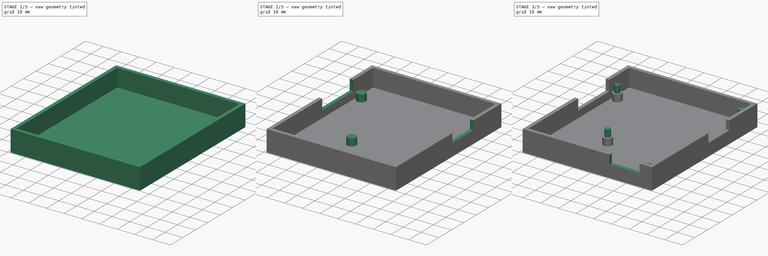
[diagram: build sequence overview — one tinted view per stage of 3, left to right]
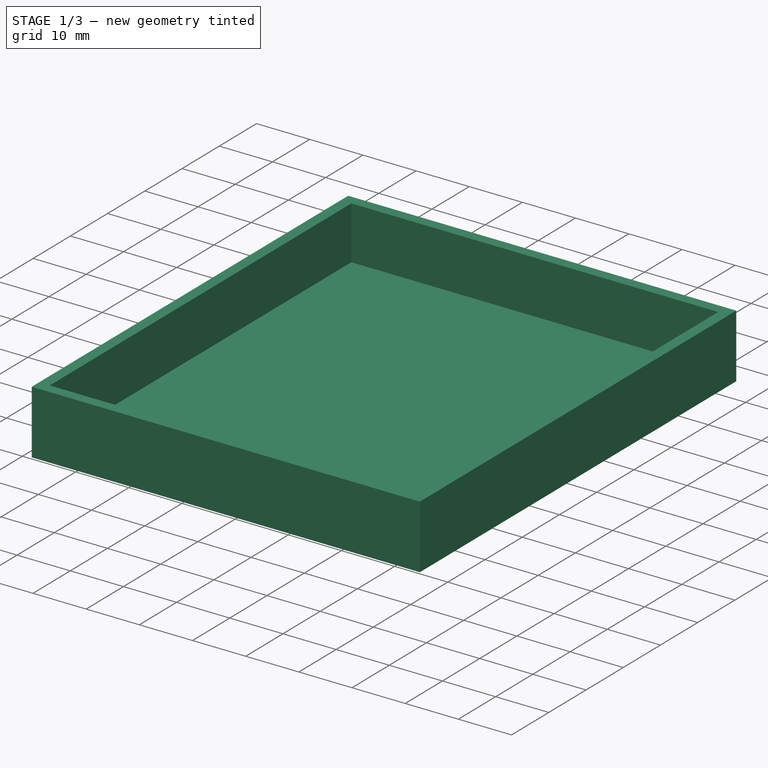
[diagram: stage 1 of 3 — iso view after this stage's code; geometry added in this stage tinted green]
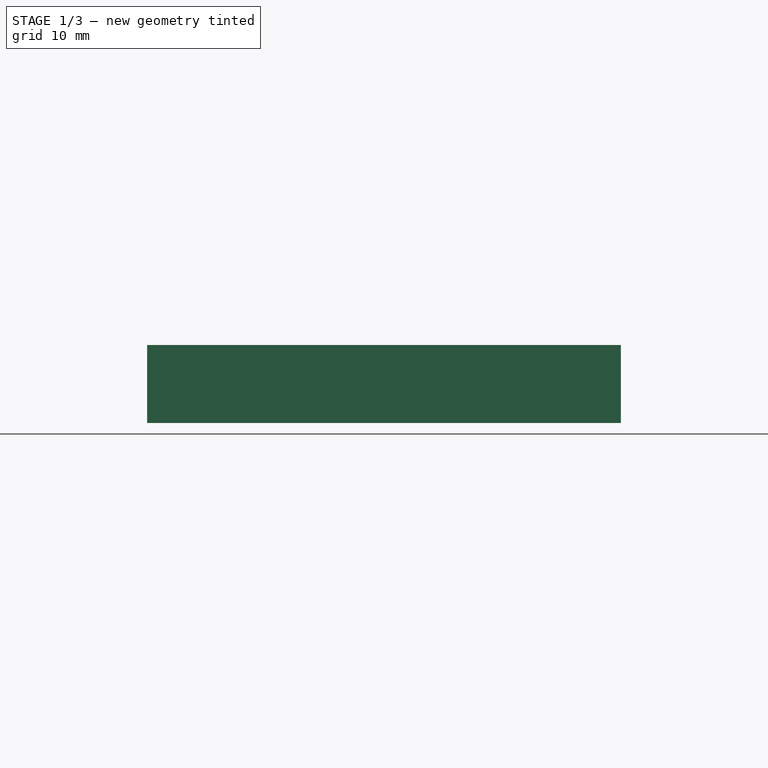
[diagram: stage 1 of 3 — front view after this stage's code; geometry added in this stage tinted green]
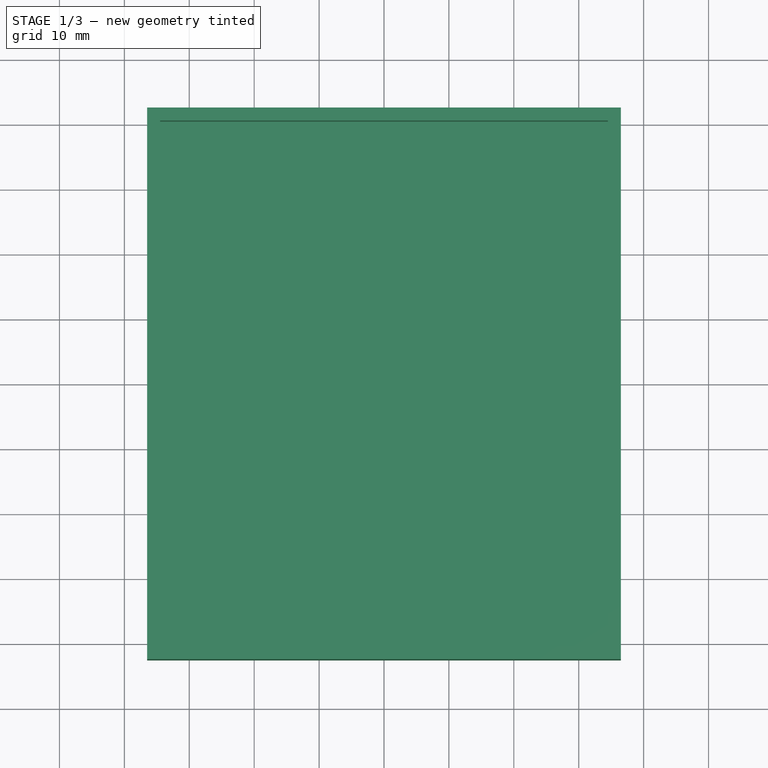
[diagram: stage 1 of 3 — top view after this stage's code; geometry added in this stage tinted green]
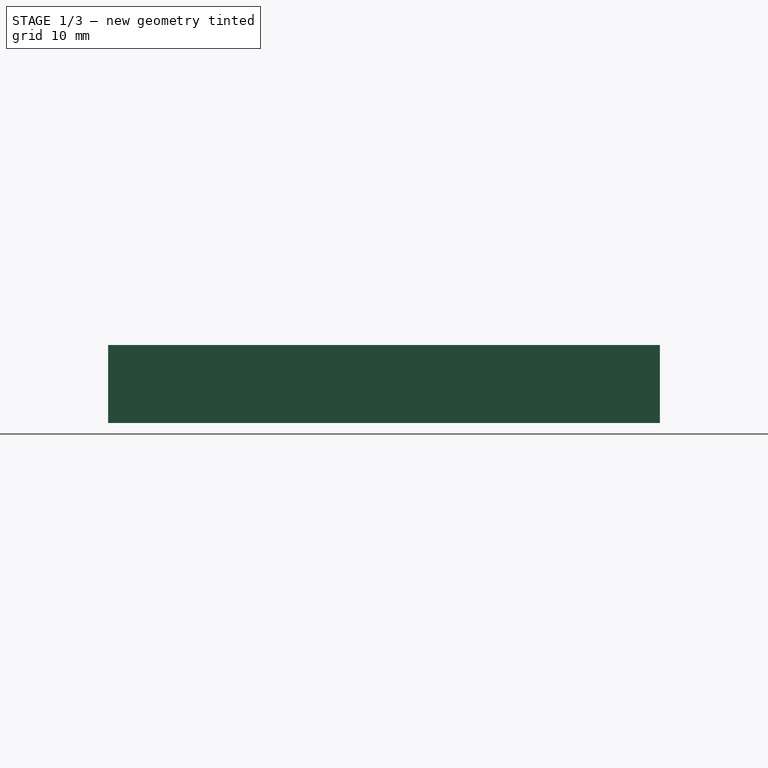
[diagram: stage 1 of 3 — right view after this stage's code; geometry added in this stage tinted green]
FCSTD DOCUMENT  (FreeCAD 0.16R6706 (Git))
Label: SmartCantonDevBoxCase
License: All rights reserved
LicenseURL: http://en.wikipedia.org/wiki/All_rights_reserved
objects: Sketcher::SketchObject×7, PartDesign::Pad×4, PartDesign::Pocket×3
note: 21 computed .brp shape members not serialized (recipe doc carries the construction recipe); baked Part::Feature solids carry a one-line shape summary decoded from their .brp

FEATURE [Sketcher::SketchObject] Sketch
  sketch-geometry (5):
    g0: LineSegment StartX=-36.5 StartY=-42.5 StartZ=0 EndX=36.5 EndY=-42.5 EndZ=0
    g1: LineSegment StartX=36.5 StartY=-42.5 StartZ=0 EndX=36.5 EndY=42.5 EndZ=0
    g2: LineSegment StartX=36.5 StartY=42.5 StartZ=0 EndX=-36.5 EndY=42.5 EndZ=0
    g3: LineSegment StartX=-36.5 StartY=42.5 StartZ=0 EndX=-36.5 EndY=-42.5 EndZ=0
    g4: LineSegment [constr] StartX=-36.5 StartY=42.5 StartZ=0 EndX=36.5 EndY=-42.5 EndZ=0
  constraints (13):
    c: Coincident(g0,g1)
    c: Coincident(g1,g2)
    c: Coincident(g2,g3)
    c: Coincident(g3,g0)
    c: Horizontal(g0)
    c: Horizontal(g2)
    c: Vertical(g1)
    c: Vertical(g3)
    c: Coincident(g4,g2)
    c: Coincident(g4,g0)
    c: Symmetric(g4,g4,g-1)
    c: DistanceX(g2,g2) = 73
    c: DistanceY(g1,g1) = 85
FEATURE [PartDesign::Pad] Pad
  Length = 2
  Length2 = 100
  Sketch = -> Sketch
  Type = 0
FEATURE [Sketcher::SketchObject] Sketch001
  ExternalGeometry = -> [Pad]
  Placement = pos=(0,0,2) rot=(0,0,1;0rad)
  Support = -> Pad [Face6]
  sketch-geometry (11):
    g0: LineSegment StartX=-36.5 StartY=42.5 StartZ=0 EndX=36.5 EndY=42.5 EndZ=0
    g1: LineSegment StartX=36.5 StartY=42.5 StartZ=0 EndX=36.5 EndY=-42.5 EndZ=0
    g2: LineSegment StartX=36.5 StartY=-42.5 StartZ=0 EndX=-36.5 EndY=-42.5 EndZ=0
    g3: LineSegment StartX=-36.5 StartY=-42.5 StartZ=0 EndX=-36.5 EndY=42.5 EndZ=0
    g4: LineSegment StartX=-34.5 StartY=40.5 StartZ=0 EndX=34.5 EndY=40.5 EndZ=0
    g5: LineSegment StartX=34.5 StartY=40.5 StartZ=0 EndX=34.5 EndY=-40.5 EndZ=0
    g6: LineSegment StartX=34.5 StartY=-40.5 StartZ=0 EndX=-34.5 EndY=-40.5 EndZ=0
    g7: LineSegment StartX=-34.5 StartY=-40.5 StartZ=0 EndX=-34.5 EndY=40.5 EndZ=0
    g8: LineSegment [constr] StartX=34.5 StartY=4.58959 StartZ=0 EndX=36.5 EndY=4.58959 EndZ=0
    g9: LineSegment [constr] StartX=2.63428 StartY=-40.5 StartZ=0 EndX=2.63428 EndY=-42.5 EndZ=0
    g10: LineSegment [constr] StartX=-34.5 StartY=40.5 StartZ=0 EndX=34.5 EndY=-40.5 EndZ=0
  constraints (29):
    c: Coincident(g0,g1)
    c: Coincident(g1,g2)
    c: Coincident(g2,g3)
    c: Coincident(g3,g0)
    c: Horizontal(g0)
    c: Horizontal(g2)
    c: Vertical(g1)
    c: Vertical(g3)
    c: Coincident(g0,g-6)
    c: Coincident(g1,g-5)
    c: Coincident(g4,g5)
    c: Coincident(g5,g6)
    c: Coincident(g6,g7)
    c: Coincident(g7,g4)
    c: Horizontal(g4)
    c: Horizontal(g6)
    c: Vertical(g5)
    c: Vertical(g7)
    c: PointOnObject(g8,g5)
    c: PointOnObject(g8,g-4)
    c: Horizontal(g8)
    c: DistanceX(g8,g8) = 2
    c: PointOnObject(g9,g6)
    c: PointOnObject(g9,g-5)
    c: Vertical(g9)
    c: Equal(g9,g8)
    c: Coincident(g10,g4)
    c: Coincident(g10,g5)
    c: Symmetric(g10,g10,g-1)
FEATURE [PartDesign::Pad] Pad001
  Length = 10
  Length2 = 85
  Sketch = -> Sketch001
  Type = 0
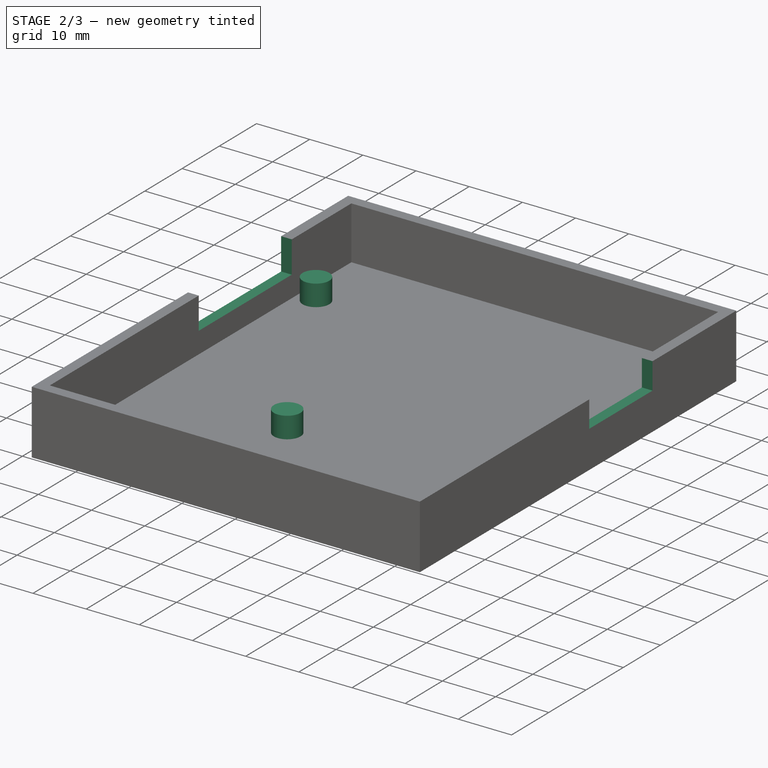
[diagram: stage 2 of 3 — iso view after this stage's code; geometry added in this stage tinted green]
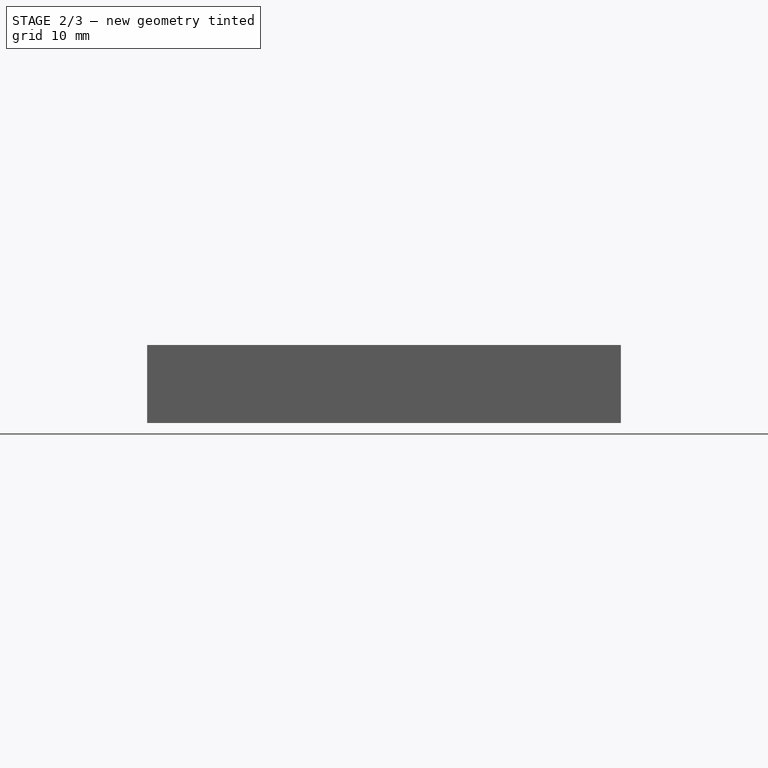
[diagram: stage 2 of 3 — front view after this stage's code; geometry added in this stage tinted green]
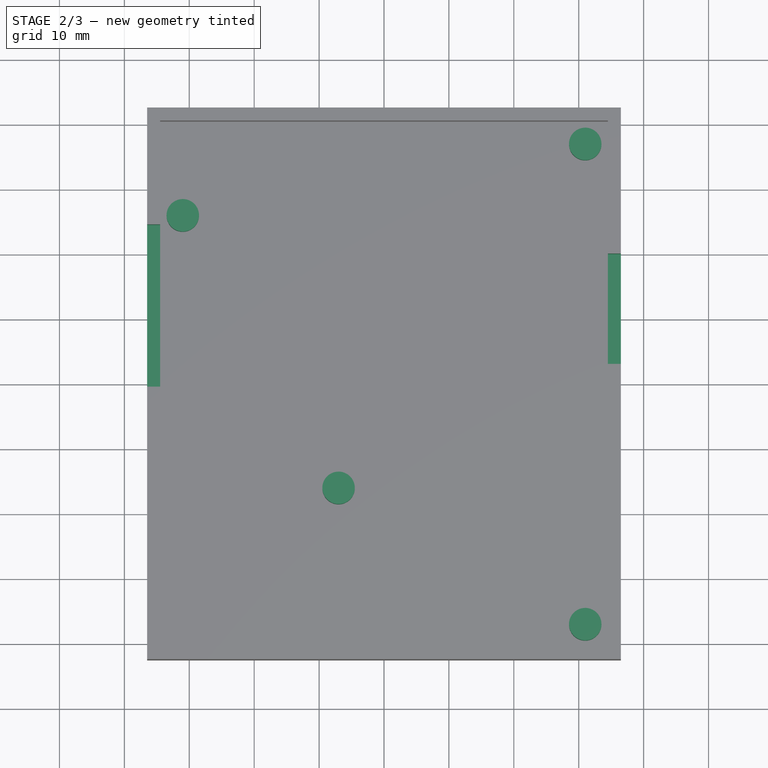
[diagram: stage 2 of 3 — top view after this stage's code; geometry added in this stage tinted green]
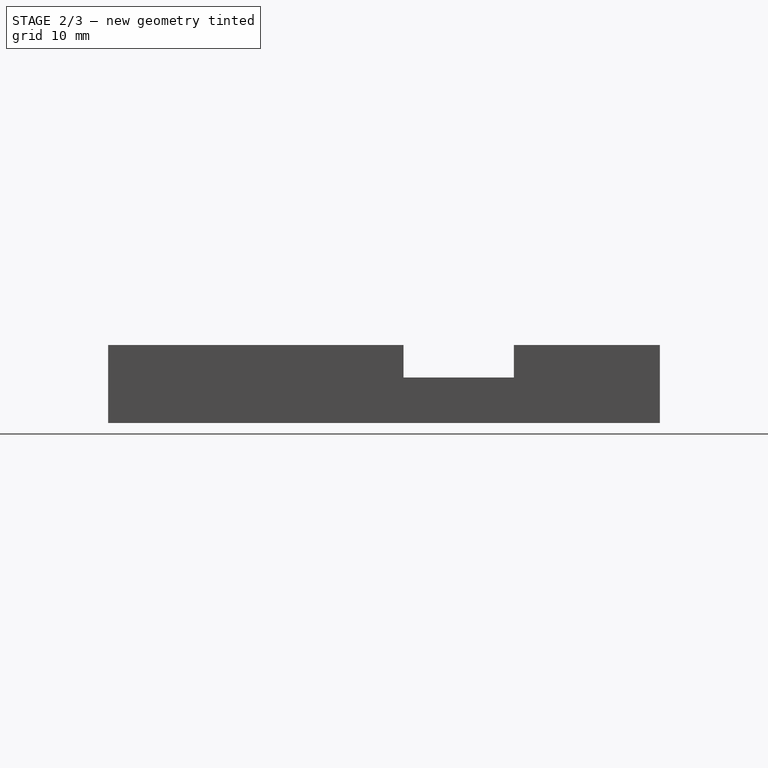
[diagram: stage 2 of 3 — right view after this stage's code; geometry added in this stage tinted green]
FEATURE [Sketcher::SketchObject] Sketch003
  Placement = pos=(0,0,12) rot=(0,0,1;0rad)
  Support = -> Pad001 [Face10]
  sketch-geometry (8):
    g0: LineSegment StartX=-36.5 StartY=24.5 StartZ=0 EndX=-34.5 EndY=24.5 EndZ=0
    g1: LineSegment StartX=-36.5 StartY=24.5 StartZ=0 EndX=-36.5 EndY=-0.5 EndZ=0
    g2: LineSegment StartX=-36.5 StartY=-0.5 StartZ=0 EndX=-34.5 EndY=-0.5 EndZ=0
    g3: LineSegment StartX=-34.5 StartY=-0.5 StartZ=0 EndX=-34.5 EndY=24.5 EndZ=0
    g4: LineSegment [constr] StartX=-34.5 StartY=24.5 StartZ=0 EndX=0 EndY=24.5 EndZ=0
    g5: LineSegment [constr] StartX=0 StartY=24.5 StartZ=0 EndX=0 EndY=0 EndZ=0
    g6: LineSegment [constr] StartX=0 StartY=0 StartZ=0 EndX=-34.5 EndY=0 EndZ=0
    g7: LineSegment [constr] StartX=-34.5 StartY=0 StartZ=0 EndX=-34.5 EndY=24.5 EndZ=0
  constraints (22):
    c: Horizontal(g0)
    c: Coincident(g1,g0)
    c: Vertical(g1)
    c: Coincident(g2,g1)
    c: Horizontal(g2)
    c: Coincident(g3,g2)
    c: Coincident(g3,g0)
    c: Vertical(g3)
    c: DistanceX(g0,g0) = 2
    c: Coincident(g4,g5)
    c: Coincident(g5,g6)
    c: Coincident(g6,g7)
    c: Coincident(g7,g4)
    c: Horizontal(g4)
    c: Horizontal(g6)
    c: Vertical(g5)
    c: Vertical(g7)
    c: Coincident(g4,g0)
    c: Coincident(g5,g-1)
    c: DistanceX(g4,g4) = 34.5
    c: DistanceY(g3,g3) = 25
    c: DistanceY(g5,g5) = 24.5
FEATURE [PartDesign::Pocket] Pocket
  Length = 6
  Sketch = -> Sketch003
  Type = 0
FEATURE [Sketcher::SketchObject] Sketch004
  Placement = pos=(0,0,2) rot=(0,0,1;0rad)
  Support = -> Pocket [Face18]
  sketch-geometry (4):
    g0: Circle CenterX=-31 CenterY=26 CenterZ=0 NormalX=0 NormalY=0 NormalZ=1 Radius=2.5
    g1: Circle CenterX=31 CenterY=37 CenterZ=0 NormalX=0 NormalY=0 NormalZ=1 Radius=2.5
    g2: Circle CenterX=31 CenterY=-37 CenterZ=0 NormalX=0 NormalY=0 NormalZ=1 Radius=2.5
    g3: Circle CenterX=-7 CenterY=-16 CenterZ=0 NormalX=0 NormalY=0 NormalZ=1 Radius=2.5
  constraints (12):
    c: DistanceX(g0,g-1) = 31
    c: DistanceY(g-1,g0) = 26
    c: Radius(g0) = 2.5
    c: Radius(g1) = 2.5
    c: Radius(g2) = 2.5
    c: Radius(g3) = 2.5
    c: DistanceX(g3,g-1) = 7
    c: DistanceY(g3,g-1) = 16
    c: DistanceY(g2,g-1) = 37
    c: DistanceX(g-1,g2) = 31
    c: DistanceY(g-1,g1) = 37
    c: DistanceX(g1) = 31
FEATURE [PartDesign::Pad] Pad002
  Length = 4
  Length2 = 100
  Sketch = -> Sketch004
  Type = 0
FEATURE [Sketcher::SketchObject] Sketch009
  Placement = pos=(0,0,12) rot=(0,0,1;0rad)
  Support = -> Pad002 [Face10]
  sketch-geometry (8):
    g0: LineSegment StartX=34 StartY=20 StartZ=0 EndX=37 EndY=20 EndZ=0
    g1: LineSegment StartX=37 StartY=20 StartZ=0 EndX=37 EndY=3 EndZ=0
    g2: LineSegment StartX=37 StartY=3 StartZ=0 EndX=34 EndY=3 EndZ=0
    g3: LineSegment StartX=34 StartY=3 StartZ=0 EndX=34 EndY=20 EndZ=0
    g4: LineSegment [constr] StartX=34 StartY=20 StartZ=0 EndX=0 EndY=20 EndZ=0
    g5: LineSegment [constr] StartX=0 StartY=20 StartZ=0 EndX=0 EndY=0 EndZ=0
    g6: LineSegment [constr] StartX=0 StartY=0 StartZ=0 EndX=34 EndY=0 EndZ=0
    g7: LineSegment [constr] StartX=34 StartY=0 StartZ=0 EndX=34 EndY=20 EndZ=0
  constraints (22):
    c: Coincident(g0,g1)
    c: Coincident(g1,g2)
    c: Coincident(g2,g3)
    c: Coincident(g3,g0)
    c: Horizontal(g0)
    c: Horizontal(g2)
    c: Vertical(g1)
    c: Vertical(g3)
    c: DistanceX(g0,g0) = 3
    c: Coincident(g4,g5)
    c: Coincident(g5,g6)
    c: Coincident(g6,g7)
    c: Coincident(g7,g4)
    c: Horizontal(g4)
    c: Horizontal(g6)
    c: Vertical(g5)
    c: Vertical(g7)
    c: Coincident(g4,g0)
    c: Coincident(g5,g-1)
    c: DistanceY(g5,g5) = 20
    c: DistanceY(g1,g1) = 17
    c: DistanceX(g4,g4) = 34
FEATURE [PartDesign::Pocket] Pocket001
  Length = 5
  Sketch = -> Sketch009
  Type = 0
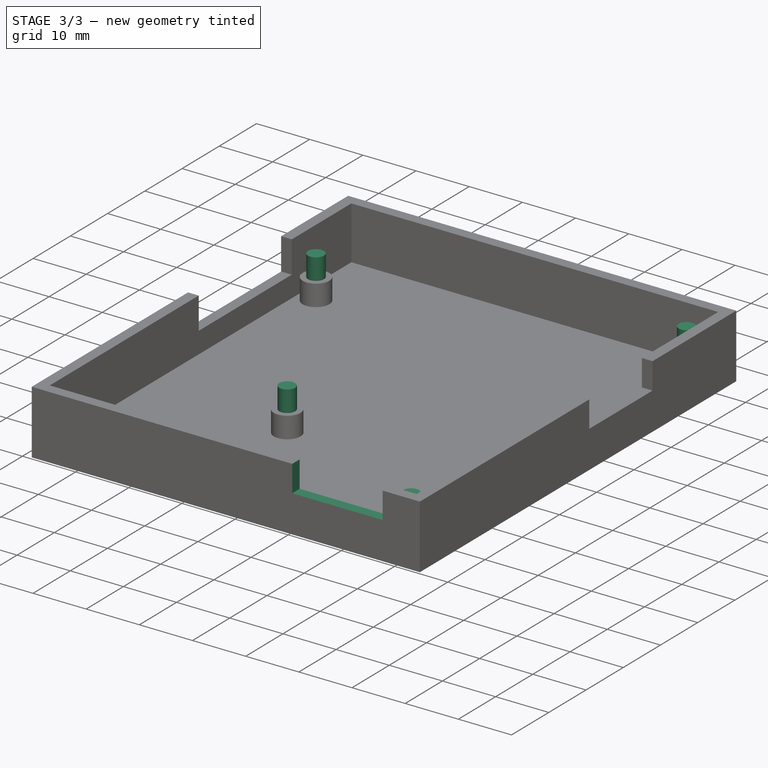
[diagram: stage 3 of 3 — iso view after this stage's code; geometry added in this stage tinted green]
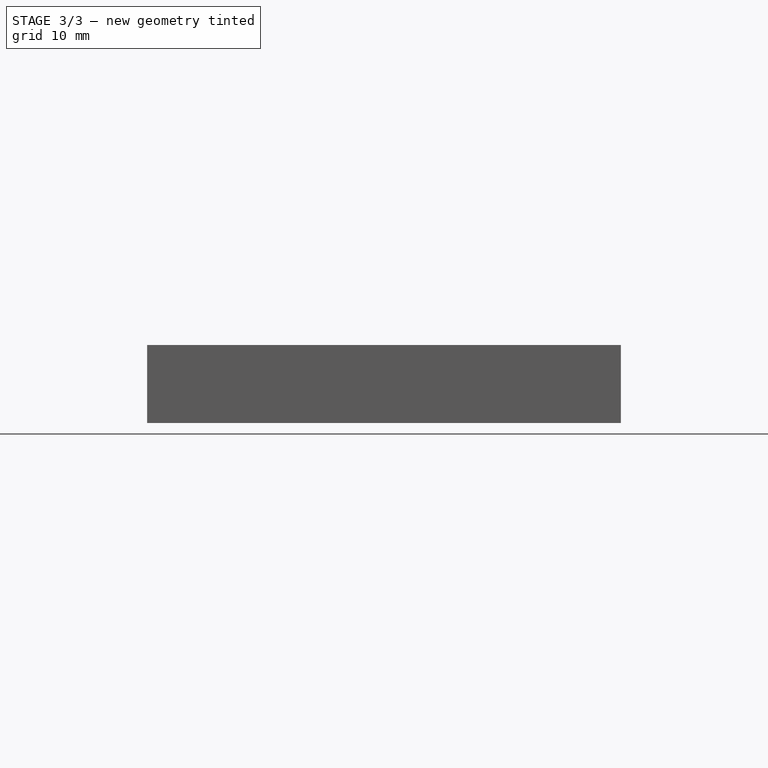
[diagram: stage 3 of 3 — front view after this stage's code; geometry added in this stage tinted green]
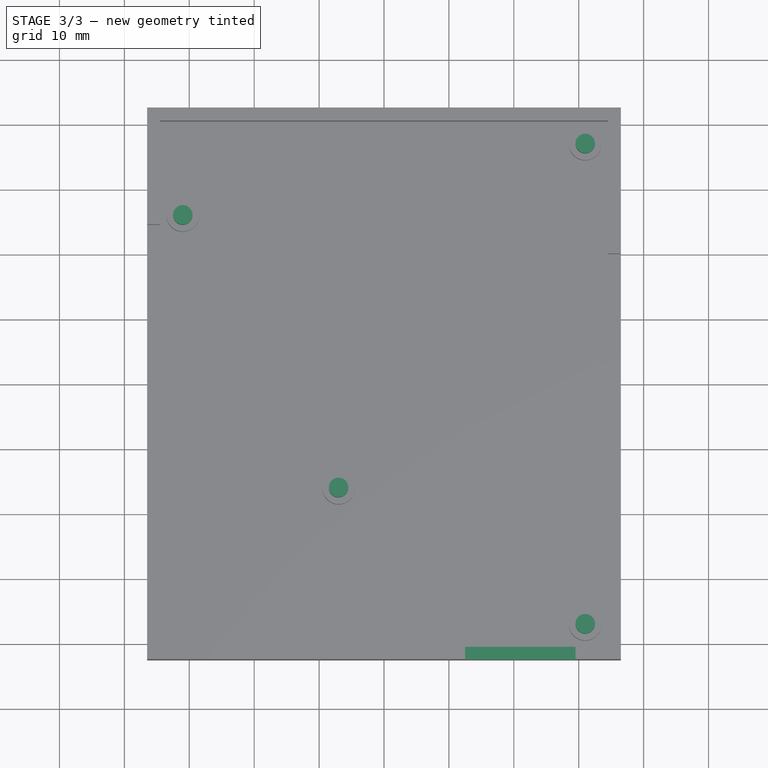
[diagram: stage 3 of 3 — top view after this stage's code; geometry added in this stage tinted green]
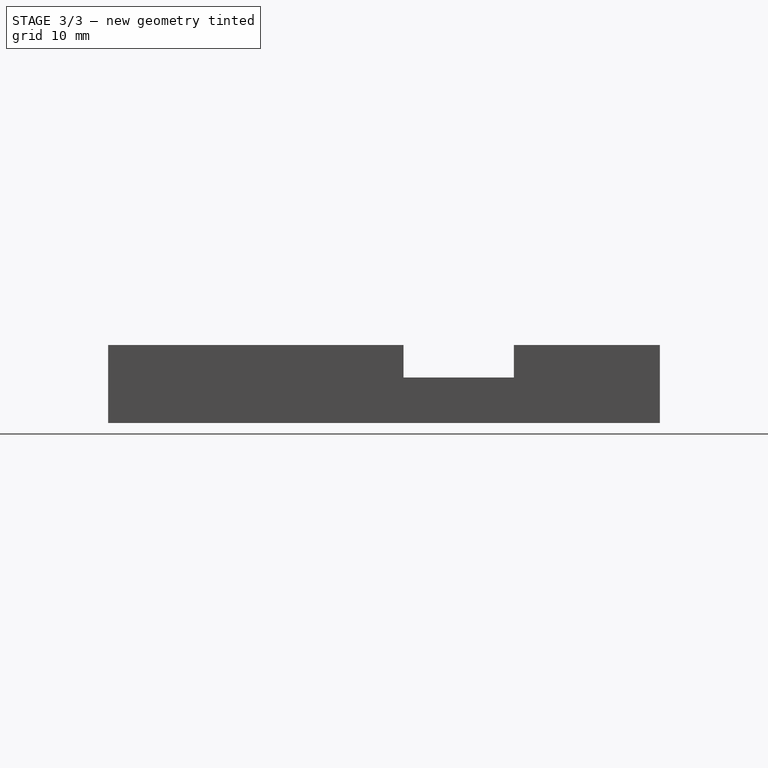
[diagram: stage 3 of 3 — right view after this stage's code; geometry added in this stage tinted green]
FEATURE [Sketcher::SketchObject] Sketch008
  Placement = pos=(0,0,2) rot=(0,0,1;0rad)
  sketch-geometry (4):
    g0: Circle CenterX=-31 CenterY=26 CenterZ=0 NormalX=0 NormalY=0 NormalZ=1 Radius=1.5
    g1: Circle CenterX=31 CenterY=37 CenterZ=0 NormalX=0 NormalY=0 NormalZ=1 Radius=1.5
    g2: Circle CenterX=31 CenterY=-37 CenterZ=0 NormalX=0 NormalY=0 NormalZ=1 Radius=1.5
    g3: Circle CenterX=-7 CenterY=-16 CenterZ=0 NormalX=0 NormalY=0 NormalZ=1 Radius=1.5
  constraints (12):
    c: DistanceX(g0,g-1) = 31
    c: DistanceY(g-1,g0) = 26
    c: Radius(g0) = 1.5
    c: Radius(g1) = 1.5
    c: Radius(g2) = 1.5
    c: Radius(g3) = 1.5
    c: DistanceX(g3,g-1) = 7
    c: DistanceY(g3,g-1) = 16
    c: DistanceY(g2,g-1) = 37
    c: DistanceX(g-1,g2) = 31
    c: DistanceY(g-1,g1) = 37
    c: DistanceX(g1) = 31
FEATURE [PartDesign::Pad] Pad003
  Length = 8
  Length2 = 100
  Placement = pos=(0,0,2) rot=(0,0,1;0rad)
  Sketch = -> Sketch008
  Type = 0
FEATURE [Sketcher::SketchObject] Sketch010
  Placement = pos=(0,0,12) rot=(0,0,1;0rad)
  Support = -> Pocket001 [Face10]
  sketch-geometry (8):
    g0: LineSegment StartX=12.5 StartY=-40.5 StartZ=0 EndX=29.5 EndY=-40.5 EndZ=0
    g1: LineSegment StartX=29.5 StartY=-40.5 StartZ=0 EndX=29.5 EndY=-42.5 EndZ=0
    g2: LineSegment StartX=29.5 StartY=-42.5 StartZ=0 EndX=12.5 EndY=-42.5 EndZ=0
    g3: LineSegment StartX=12.5 StartY=-42.5 StartZ=0 EndX=12.5 EndY=-40.5 EndZ=0
    g4: LineSegment [constr] StartX=0 StartY=0 StartZ=0 EndX=29.5 EndY=0 EndZ=0
    g5: LineSegment [constr] StartX=29.5 StartY=0 StartZ=0 EndX=29.5 EndY=-40.5 EndZ=0
    g6: LineSegment [constr] StartX=29.5 StartY=-40.5 StartZ=0 EndX=0 EndY=-40.5 EndZ=0
    g7: LineSegment [constr] StartX=0 StartY=-40.5 StartZ=0 EndX=0 EndY=0 EndZ=0
  constraints (22):
    c: Coincident(g0,g1)
    c: Coincident(g1,g2)
    c: Coincident(g2,g3)
    c: Coincident(g3,g0)
    c: Horizontal(g0)
    c: Horizontal(g2)
    c: Vertical(g1)
    c: Vertical(g3)
    c: DistanceX(g2,g2) = 17
    c: DistanceY(g1,g1) = 2
    c: Coincident(g4,g5)
    c: Coincident(g5,g6)
    c: Coincident(g6,g7)
    c: Coincident(g7,g4)
    c: Horizontal(g4)
    c: Horizontal(g6)
    c: Vertical(g5)
    c: Vertical(g7)
    c: Coincident(g5,g0)
    c: DistanceX(g4,g4) = 29.5
    c: Coincident(g-1,g4)
    c: DistanceY(g5,g5) = 40.5
FEATURE [PartDesign::Pocket] Pocket002
  Length = 5
  Sketch = -> Sketch010
  Type = 0
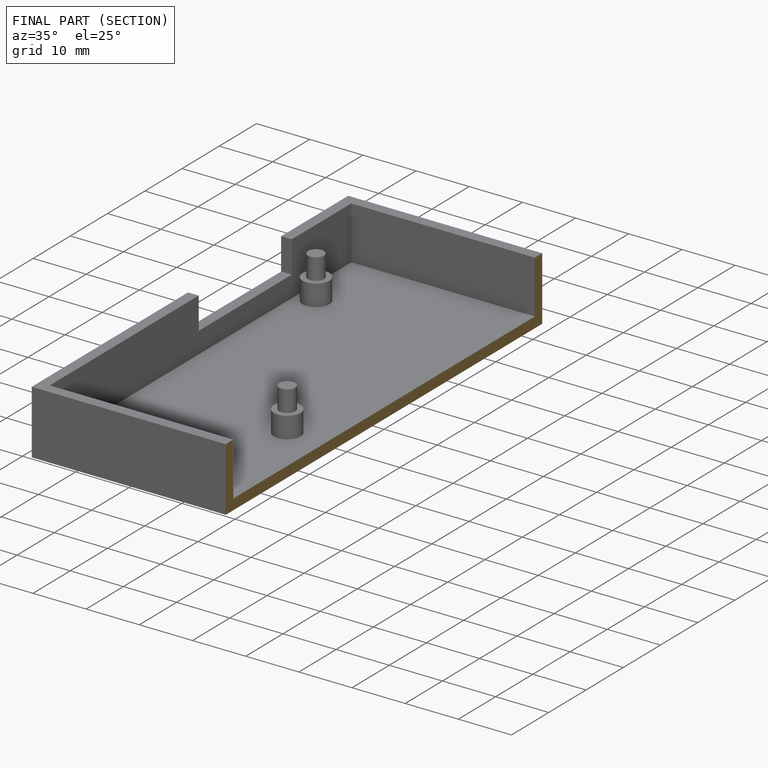
[diagram: finished part — half-section view (interior)]
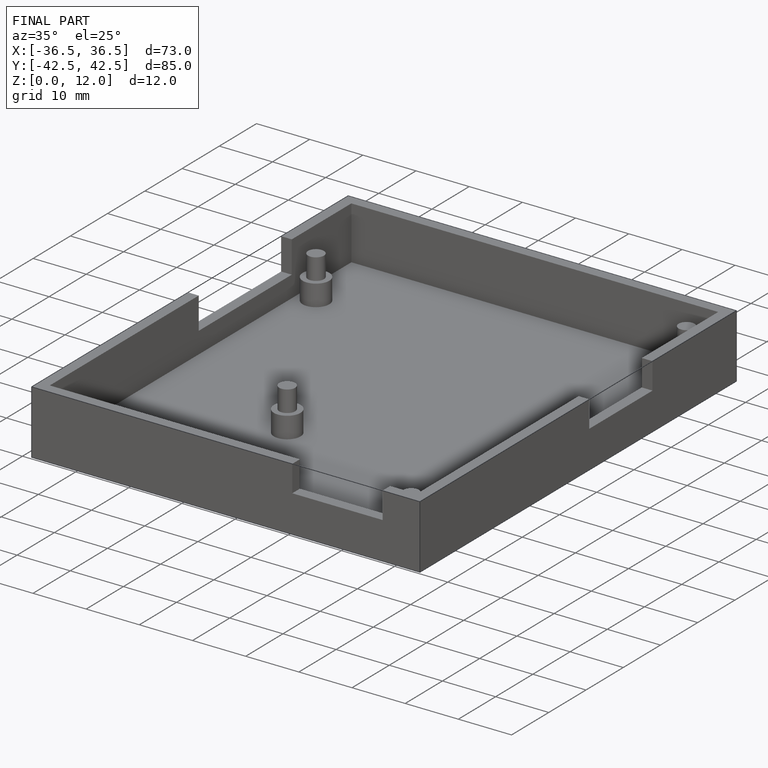
[diagram: finished part — iso view with bounding-box wireframe]
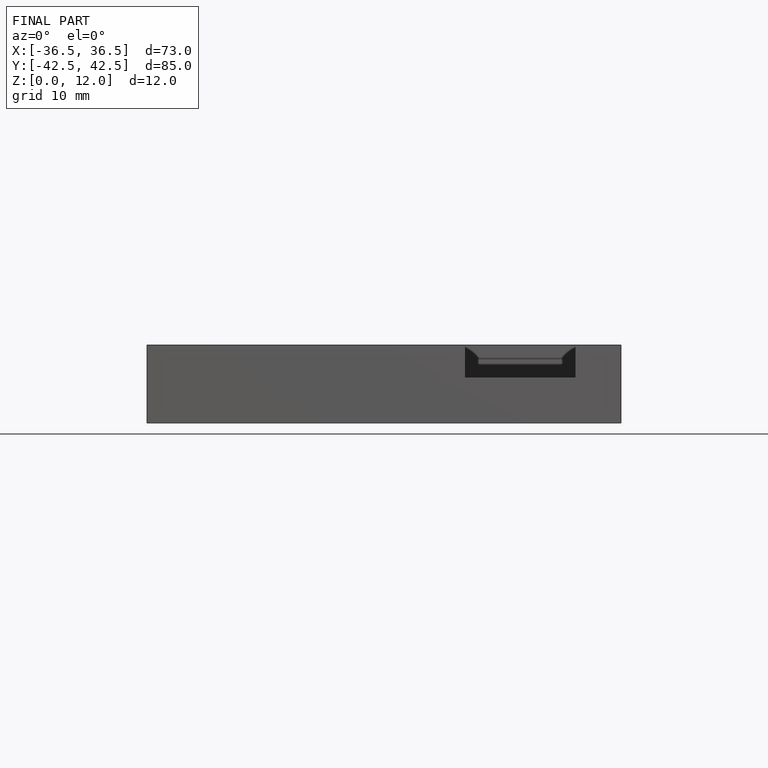
[diagram: finished part — front view with bounding-box wireframe]
